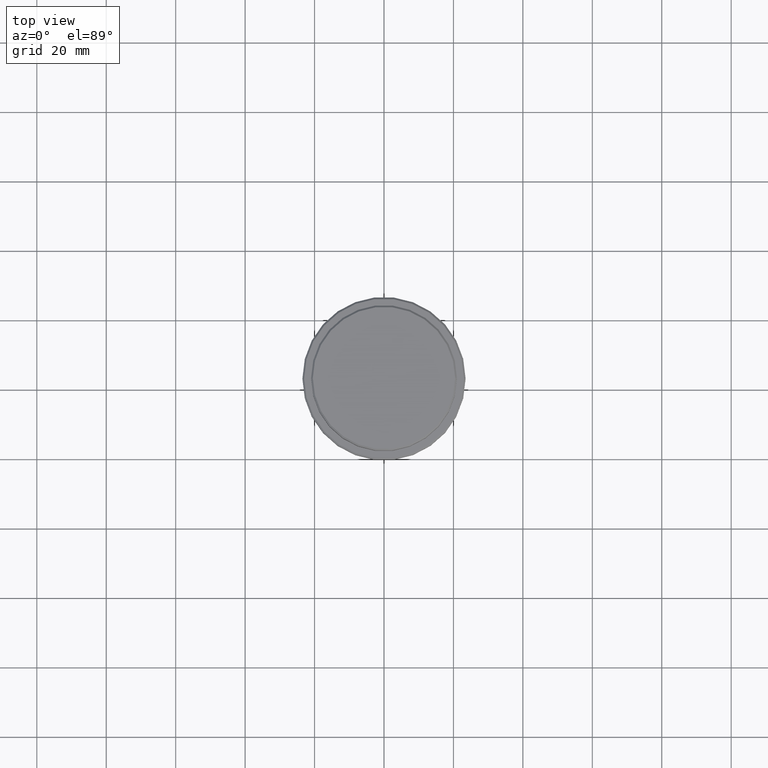
[diagram: clean part render]
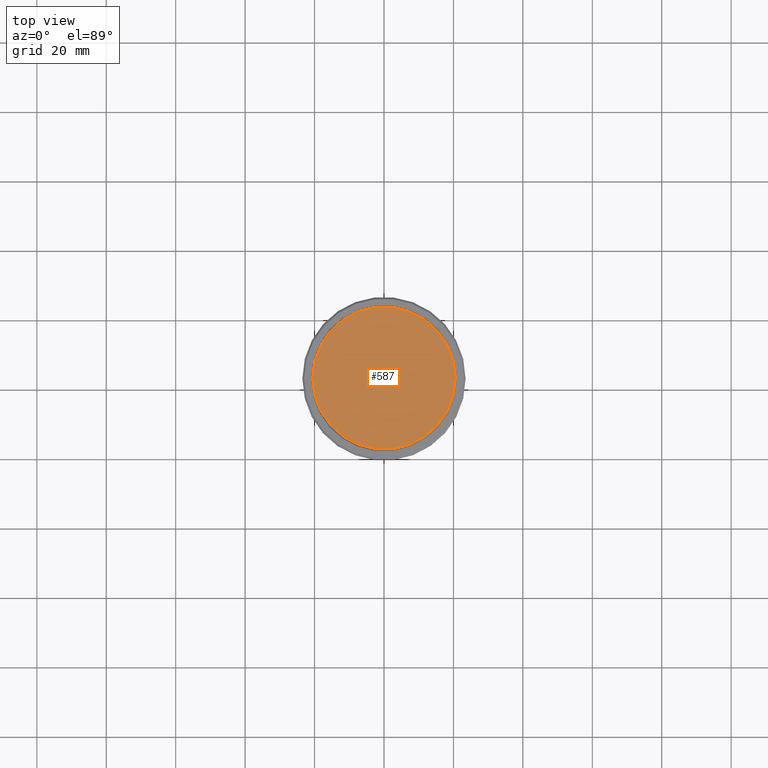
[diagram: same view with one face highlighted and labeled with its STEP entity id]
A machine part, top view. The second image highlights one B-rep face of the part: STEP entity #587.
In plain terms, the highlighted planar face has unit normal (0, -0, 1).
Its self-contained STEP definition (entity closure, byte-faithful):
#8 = DIRECTION ( 'NONE',  ( -0.000000000000000000, -0.000000000000000000, 1.000000000000000000 ) ) ;
#210 = AXIS2_PLACEMENT_3D ( 'NONE', #1090, #988, #885 ) ;
#359 = VERTEX_POINT ( 'NONE', #726 ) ;
#377 = AXIS2_PLACEMENT_3D ( 'NONE', #410, #854, #497 ) ;
#410 = CARTESIAN_POINT ( 'NONE',  ( 0.000000000000000000, 0.000000000000000000, 0.000000000000000000 ) ) ;
#497 = DIRECTION ( 'NONE',  ( 1.000000000000000000, 0.000000000000000000, 0.000000000000000000 ) ) ;
#555 = PLANE ( 'NONE',  #210 ) ;
#587 = ADVANCED_FACE ( 'NONE', ( #762 ), #555, .T. ) ;
#641 = DIRECTION ( 'NONE',  ( 1.000000000000000000, 0.000000000000000000, 0.000000000000000000 ) ) ;
#726 = CARTESIAN_POINT ( 'NONE',  ( -20.50000000000001776, 0.000000000000000000, 0.000000000000000000 ) ) ;
#762 = FACE_OUTER_BOUND ( 'NONE', #1214, .T. ) ;
#791 = CARTESIAN_POINT ( 'NONE',  ( 20.50000000000001776, 2.541142108230759057E-15, 0.000000000000000000 ) ) ;
#854 = DIRECTION ( 'NONE',  ( -0.000000000000000000, -0.000000000000000000, 1.000000000000000000 ) ) ;
#885 = DIRECTION ( 'NONE',  ( 1.000000000000000000, 0.000000000000000000, 0.000000000000000000 ) ) ;
#904 = EDGE_CURVE ( 'NONE', #359, #1151, #1210, .T. ) ;
#987 = EDGE_CURVE ( 'NONE', #1151, #359, #1075, .T. ) ;
#988 = DIRECTION ( 'NONE',  ( 0.000000000000000000, -0.000000000000000000, 1.000000000000000000 ) ) ;
#1075 = CIRCLE ( 'NONE', #1307, 20.50000000000001776 ) ;
#1090 = CARTESIAN_POINT ( 'NONE',  ( 0.000000000000000000, 0.000000000000000000, 0.000000000000000000 ) ) ;
#1151 = VERTEX_POINT ( 'NONE', #791 ) ;
#1198 = CARTESIAN_POINT ( 'NONE',  ( 0.000000000000000000, 0.000000000000000000, 0.000000000000000000 ) ) ;
#1210 = CIRCLE ( 'NONE', #377, 20.50000000000001776 ) ;
#1214 = EDGE_LOOP ( 'NONE', ( #1333, #1274 ) ) ;
#1274 = ORIENTED_EDGE ( 'NONE', *, *, #987, .T. ) ;
#1307 = AXIS2_PLACEMENT_3D ( 'NONE', #1198, #8, #641 ) ;
#1333 = ORIENTED_EDGE ( 'NONE', *, *, #904, .T. ) ;